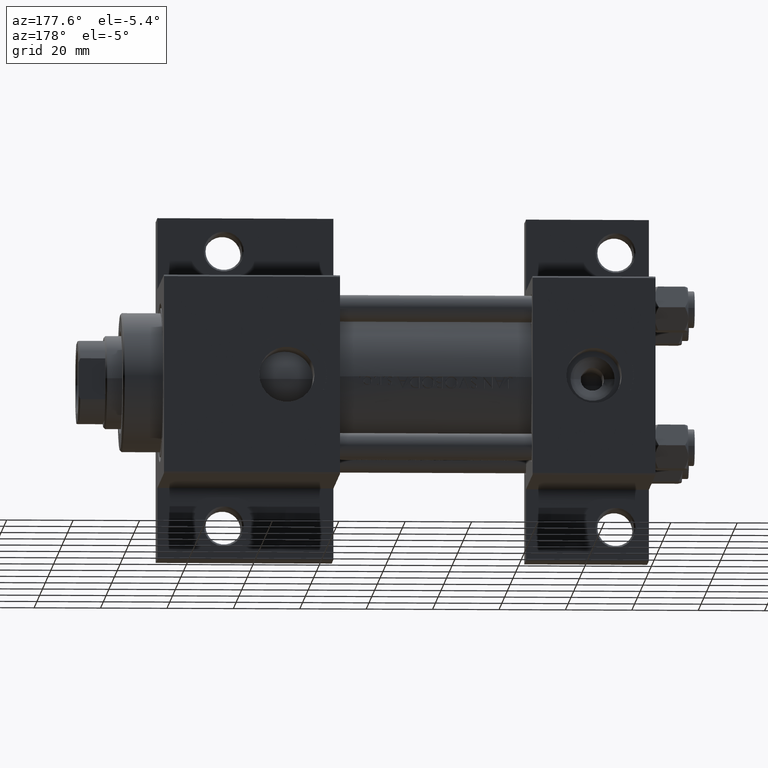
[diagram: clean part render]
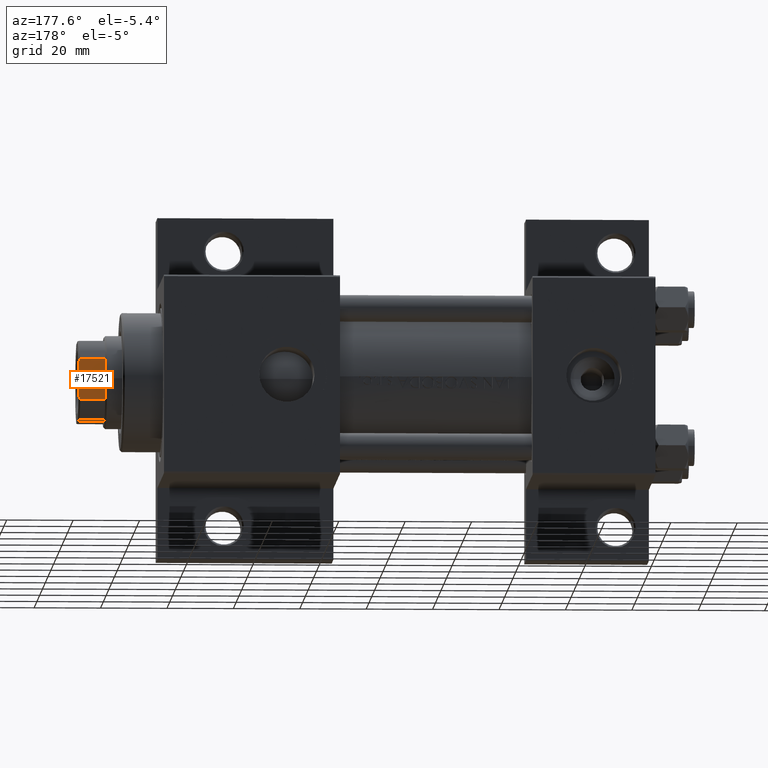
[diagram: same view with one face highlighted and labeled with its STEP entity id]
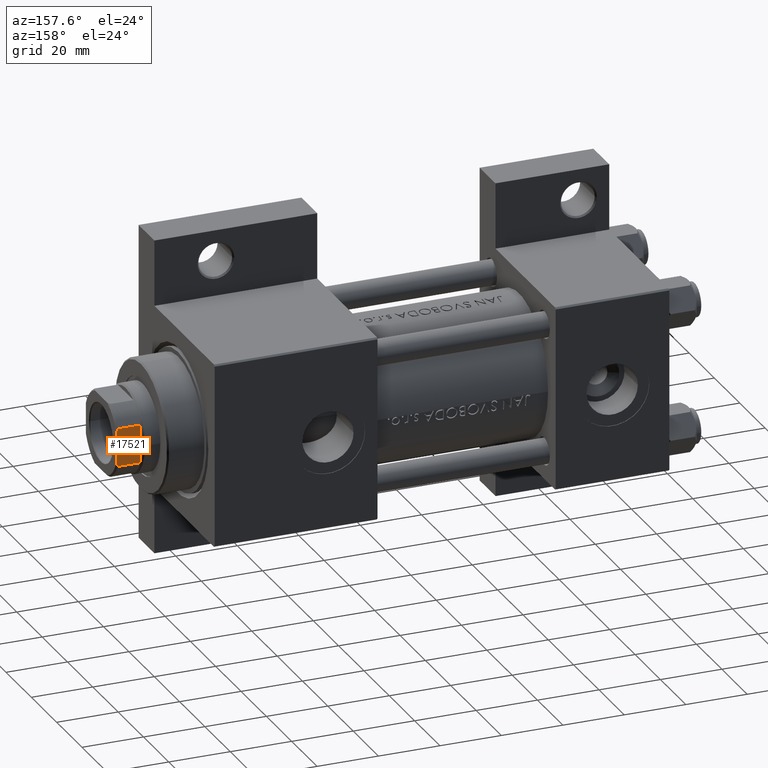
[diagram: same view with one face highlighted and labeled with its STEP entity id]
A machine part, auxiliary view. The second image highlights one B-rep face of the part: STEP entity #17521.
A second angle (auxiliary view) of the same face is appended — the face is thin or edge-on in the first view.
In plain terms, the highlighted planar face has unit normal (0, -1, -0).
Its self-contained STEP definition (entity closure, byte-faithful):
#1451 = CARTESIAN_POINT ( 'NONE',  ( -11.99999999999999822, -6.184658438426491323, 135.5000000000000284 ) ) ;
#1863 = CARTESIAN_POINT ( 'NONE',  ( -11.99999999999999822, -6.184658438426491323, 128.0000000000000853 ) ) ;
#2015 = CARTESIAN_POINT ( 'NONE',  ( -12.00000000000000000, 5.794808544282239460, 135.6785991435214100 ) ) ;
#3088 = ORIENTED_EDGE ( 'NONE', *, *, #22280, .F. ) ;
#3997 = B_SPLINE_CURVE_WITH_KNOTS ( 'NONE', 3,
 ( #23883, #12822, #2015, #34973 ),
 .UNSPECIFIED., .F., .F.,
 ( 4, 4 ),
 ( 0.000000000000000000, 0.001285852097146151889 ),
 .UNSPECIFIED. ) ;
#4255 = VERTEX_POINT ( 'NONE', #38869 ) ;
#4828 = AXIS2_PLACEMENT_3D ( 'NONE', #15788, #44710, #26623 ) ;
#5799 = DIRECTION ( 'NONE',  ( 7.228014483236695816E-17, -1.000000000000000000, 0.000000000000000000 ) ) ;
#6473 = VECTOR ( 'NONE', #5799, 1000.000000000000000 ) ;
#6896 = CARTESIAN_POINT ( 'NONE',  ( -11.99999999999999822, -6.184658438426491323, -0.001000000000001000089 ) ) ;
#7938 = CARTESIAN_POINT ( 'NONE',  ( -11.99999999999999822, -5.400255697127819943, 135.8460555011047006 ) ) ;
#8603 = VECTOR ( 'NONE', #38853, 1000.000000000000000 ) ;
#9186 = ORIENTED_EDGE ( 'NONE', *, *, #25518, .T. ) ;
#9402 = CARTESIAN_POINT ( 'NONE',  ( -12.00000000000000000, 11.99999999999999645, 136.0000000000000000 ) ) ;
#9620 = EDGE_CURVE ( 'NONE', #11632, #4255, #37608, .T. ) ;
#9843 = ORIENTED_EDGE ( 'NONE', *, *, #9620, .T. ) ;
#11278 = VERTEX_POINT ( 'NONE', #1863 ) ;
#11486 = ORIENTED_EDGE ( 'NONE', *, *, #11515, .T. ) ;
#11515 = EDGE_CURVE ( 'NONE', #11278, #11632, #25156, .T. ) ;
#11628 = EDGE_CURVE ( 'NONE', #23352, #35623, #27295, .T. ) ;
#11632 = VERTEX_POINT ( 'NONE', #27516 ) ;
#12822 = CARTESIAN_POINT ( 'NONE',  ( -12.00000000000000000, 5.400255697127776422, 135.8460555011047006 ) ) ;
#15788 = CARTESIAN_POINT ( 'NONE',  ( -12.00000000000000000, 11.99999999999999645, 136.0000000000000000 ) ) ;
#17137 = CARTESIAN_POINT ( 'NONE',  ( -12.00000000000000000, 4.999999999999979572, 136.0000000000000000 ) ) ;
#17521 = ADVANCED_FACE ( 'NONE', ( #47398 ), #45433, .F. ) ;
#18115 = CARTESIAN_POINT ( 'NONE',  ( -12.00000000000000000, 11.99999999999999645, 128.0000000000000000 ) ) ;
#18449 = ORIENTED_EDGE ( 'NONE', *, *, #39253, .T. ) ;
#20574 = ORIENTED_EDGE ( 'NONE', *, *, #11628, .F. ) ;
#20888 = VECTOR ( 'NONE', #21548, 1000.000000000000000 ) ;
#21548 = DIRECTION ( 'NONE',  ( -0.000000000000000000, -0.000000000000000000, 1.000000000000000000 ) ) ;
#22280 = EDGE_CURVE ( 'NONE', #43629, #4255, #26955, .T. ) ;
#22678 = VECTOR ( 'NONE', #40043, 1000.000000000000000 ) ;
#23078 = CARTESIAN_POINT ( 'NONE',  ( -12.00000000000000000, -5.000000000000039968, 136.0000000000000000 ) ) ;
#23352 = VERTEX_POINT ( 'NONE', #39473 ) ;
#23883 = CARTESIAN_POINT ( 'NONE',  ( -12.00000000000000000, 4.999999999999979572, 136.0000000000000000 ) ) ;
#25156 = LINE ( 'NONE', #6896, #20888 ) ;
#25518 = EDGE_CURVE ( 'NONE', #23352, #11278, #28487, .T. ) ;
#26623 = DIRECTION ( 'NONE',  ( -7.228014483236695816E-17, 1.000000000000000000, 0.000000000000000000 ) ) ;
#26955 = LINE ( 'NONE', #9402, #6473 ) ;
#27295 = LINE ( 'NONE', #38146, #8603 ) ;
#27516 = CARTESIAN_POINT ( 'NONE',  ( -11.99999999999999822, -6.184658438426491323, 135.5000000000000284 ) ) ;
#28169 = EDGE_LOOP ( 'NONE', ( #11486, #9843, #3088, #18449, #20574, #9186 ) ) ;
#28487 = LINE ( 'NONE', #18115, #22678 ) ;
#34973 = CARTESIAN_POINT ( 'NONE',  ( -11.99999999999999645, 6.184658438426496652, 135.5000000000000000 ) ) ;
#35623 = VERTEX_POINT ( 'NONE', #36802 ) ;
#36802 = CARTESIAN_POINT ( 'NONE',  ( -11.99999999999999645, 6.184658438426496652, 135.5000000000000000 ) ) ;
#37608 = B_SPLINE_CURVE_WITH_KNOTS ( 'NONE', 3,
 ( #1451, #41886, #7938, #23078 ),
 .UNSPECIFIED., .F., .F.,
 ( 4, 4 ),
 ( 0.000000000000000000, 0.001285852097146078597 ),
 .UNSPECIFIED. ) ;
#38146 = CARTESIAN_POINT ( 'NONE',  ( -11.99999999999999645, 6.184658438426496652, -0.001000000000001000089 ) ) ;
#38853 = DIRECTION ( 'NONE',  ( -0.000000000000000000, -0.000000000000000000, 1.000000000000000000 ) ) ;
#38869 = CARTESIAN_POINT ( 'NONE',  ( -12.00000000000000000, -5.000000000000039968, 136.0000000000000000 ) ) ;
#39253 = EDGE_CURVE ( 'NONE', #43629, #35623, #3997, .T. ) ;
#39473 = CARTESIAN_POINT ( 'NONE',  ( -11.99999999999999645, 6.184658438426495763, 128.0000000000000853 ) ) ;
#40043 = DIRECTION ( 'NONE',  ( 7.228014483236695816E-17, -1.000000000000000000, 0.000000000000000000 ) ) ;
#41886 = CARTESIAN_POINT ( 'NONE',  ( -11.99999999999999822, -5.794808544282251894, 135.6785991435214385 ) ) ;
#43629 = VERTEX_POINT ( 'NONE', #17137 ) ;
#44710 = DIRECTION ( 'NONE',  ( 1.000000000000000000, 7.228014483236695816E-17, -0.000000000000000000 ) ) ;
#45433 = PLANE ( 'NONE',  #4828 ) ;
#47398 = FACE_OUTER_BOUND ( 'NONE', #28169, .T. ) ;